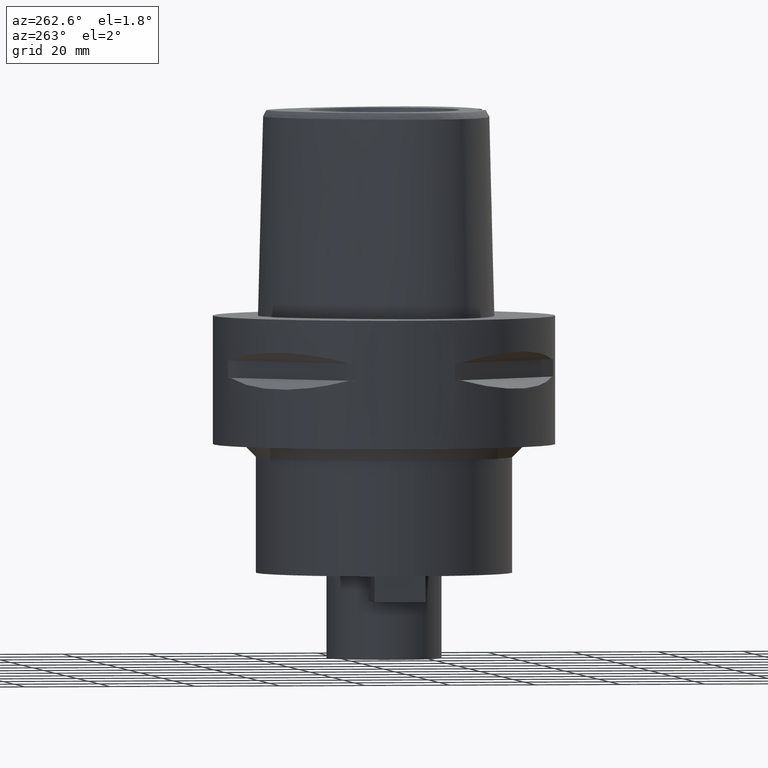
[diagram: clean part render]
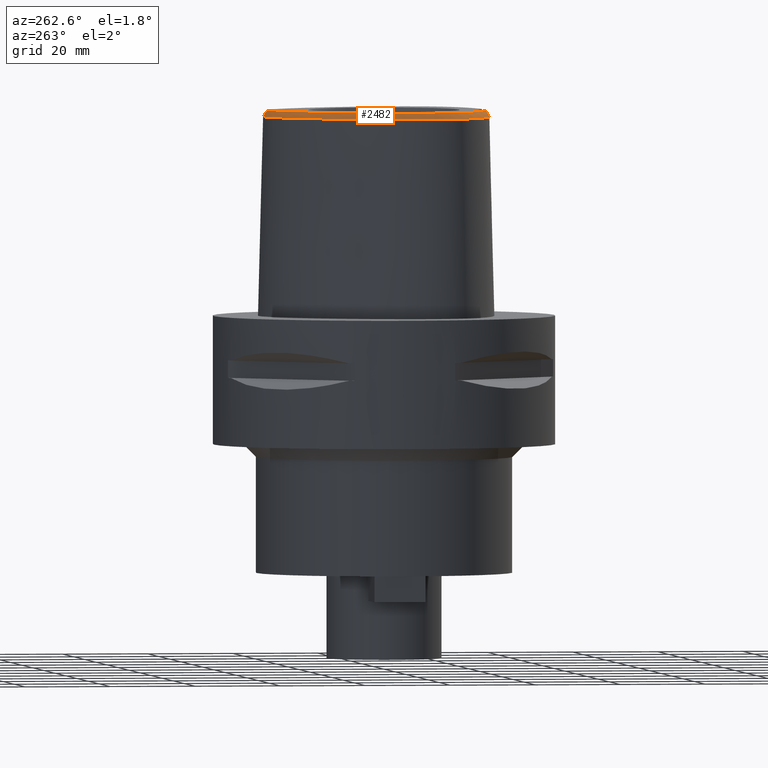
[diagram: same view with one face highlighted and labeled with its STEP entity id]
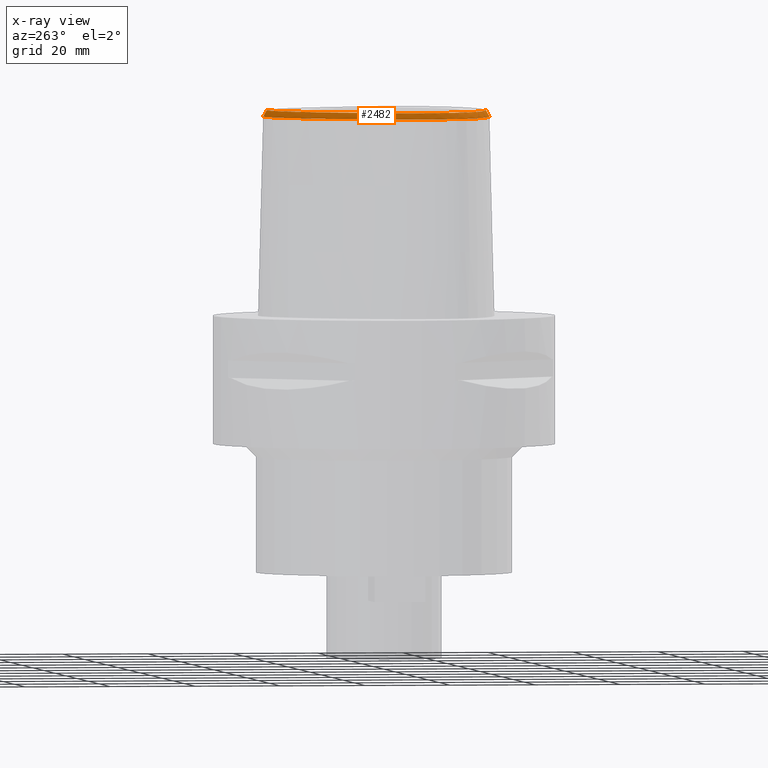
[diagram: x-ray of the same camera — body ghosted, the highlighted face saturated]
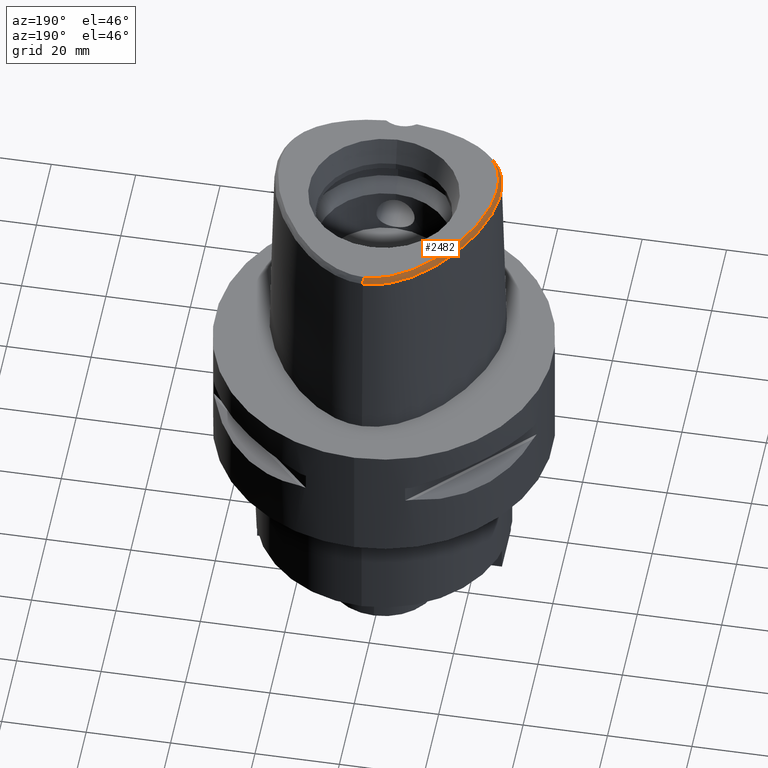
[diagram: same view with one face highlighted and labeled with its STEP entity id]
A machine part, auxiliary view. The second image highlights one B-rep face of the part: STEP entity #2482.
The next image is the same camera in x-ray: the body ghosted, the highlighted face saturated — about 0% of this face is hidden behind the body in this view.
A second angle (auxiliary view) of the same face is appended — the face is thin or edge-on in the first view.
In plain terms, the highlighted face is a freeform B-spline surface patch.
Its self-contained STEP definition (entity closure, byte-faithful):
#26=CARTESIAN_POINT('',(-3.652529789307E0,-2.343985019792E1,4.8E1));
#27=CARTESIAN_POINT('',(-4.682506310251E0,-2.335839077683E1,4.8E1));
#28=CARTESIAN_POINT('',(-6.613979818860E0,-2.313460925064E1,4.8E1));
#29=CARTESIAN_POINT('',(-9.098649977089E0,-2.268460291761E1,4.8E1));
#30=CARTESIAN_POINT('',(-1.127172968099E1,-2.215412045860E1,4.8E1));
#31=CARTESIAN_POINT('',(-1.320908530935E1,-2.155659201484E1,4.8E1));
#32=CARTESIAN_POINT('',(-1.496944205719E1,-2.089388126813E1,4.8E1));
#33=CARTESIAN_POINT('',(-1.658657667306E1,-2.016345981040E1,4.8E1));
#34=CARTESIAN_POINT('',(-1.807297238436E1,-1.936532391597E1,4.8E1));
#35=CARTESIAN_POINT('',(-1.945748736633E1,-1.848331739980E1,4.8E1));
#36=CARTESIAN_POINT('',(-2.074155331957E1,-1.750362714291E1,4.8E1));
#37=CARTESIAN_POINT('',(-2.185182615137E1,-1.647859773456E1,4.8E1));
#38=CARTESIAN_POINT('',(-2.276920347760E1,-1.545131149634E1,4.8E1));
#39=CARTESIAN_POINT('',(-2.352529383792E1,-1.441841763204E1,4.8E1));
#40=CARTESIAN_POINT('',(-2.415214314638E1,-1.335465532835E1,4.8E1));
#41=CARTESIAN_POINT('',(-2.468551687505E1,-1.219714934946E1,4.8E1));
#42=CARTESIAN_POINT('',(-2.513040154312E1,-1.091634099556E1,4.8E1));
#43=CARTESIAN_POINT('',(-2.548097283439E1,-9.472960805102E0,4.8E1));
#44=CARTESIAN_POINT('',(-2.571037113585E1,-7.884873650878E0,4.8E1));
#45=CARTESIAN_POINT('',(-2.580404631293E1,-6.256692086675E0,4.8E1));
#46=CARTESIAN_POINT('',(-2.577267564197E1,-4.569205638491E0,4.8E1));
#47=CARTESIAN_POINT('',(-2.561806689403E1,-2.822790877253E0,4.8E1));
#48=CARTESIAN_POINT('',(-2.533469524151E1,-9.828961935292E-1,4.8E1));
#49=CARTESIAN_POINT('',(-2.490936842220E1,9.707203610340E-1,4.8E1));
#50=CARTESIAN_POINT('',(-2.431744961949E1,3.077167059625E0,4.8E1));
#51=CARTESIAN_POINT('',(-2.350902367181E1,5.407804135988E0,4.8E1));
#52=CARTESIAN_POINT('',(-2.241293427926E1,8.024647750033E0,4.8E1));
#53=CARTESIAN_POINT('',(-2.095602422414E1,1.093087960995E1,4.8E1));
#54=CARTESIAN_POINT('',(-1.919273895913E1,1.387761058776E1,4.8E1));
#55=CARTESIAN_POINT('',(-1.741760577854E1,1.640531101106E1,4.8E1));
#56=CARTESIAN_POINT('',(-1.574552640836E1,1.848413259865E1,4.8E1));
#57=CARTESIAN_POINT('',(-1.415519222907E1,2.022881174342E1,4.8E1));
#58=CARTESIAN_POINT('',(-1.265414855667E1,2.168922134704E1,4.8E1));
#59=CARTESIAN_POINT('',(-1.119834568323E1,2.294610371828E1,4.8E1));
#60=CARTESIAN_POINT('',(-9.752757055716E0,2.404424420693E1,4.8E1));
#61=CARTESIAN_POINT('',(-8.307129368291E0,2.499693428276E1,4.8E1));
#62=CARTESIAN_POINT('',(-6.858336564847E0,2.580759326769E1,4.8E1));
#63=CARTESIAN_POINT('',(-5.395838489006E0,2.647902279660E1,4.8E1));
#64=CARTESIAN_POINT('',(-3.942089810783E0,2.699585107464E1,4.8E1));
#65=CARTESIAN_POINT('',(-2.552926346090E0,2.734495012612E1,4.8E1));
#66=CARTESIAN_POINT('',(-1.253786683061E0,2.754076020330E1,4.8E1));
#67=CARTESIAN_POINT('',(-4.119058837651E-1,2.758331912251E1,4.8E1));
#68=CARTESIAN_POINT('',(-2.553072305E-11,2.758331912251E1,4.8E1));
#192=CARTESIAN_POINT('',(-3.652529789307E0,-2.343985019792E1,4.8E1));
#193=CARTESIAN_POINT('',(-3.751204616441E0,-2.351556477846E1,4.785138543927E1));
#194=CARTESIAN_POINT('',(-3.943512933109E0,-2.367289511864E1,4.754334532480E1));
#195=CARTESIAN_POINT('',(-4.215867144832E0,-2.392533371846E1,4.705187245735E1));
#196=CARTESIAN_POINT('',(-4.388480110983E0,-2.410646604204E1,4.670130956970E1));
#197=CARTESIAN_POINT('',(-4.472216406693E0,-2.420008985674E1,4.652070903171E1));
#202=CARTESIAN_POINT('',(-4.472216406693E0,-2.420008985674E1,4.652070903171E1));
#203=CARTESIAN_POINT('',(-5.503190001927E0,-2.410139905198E1,4.652067891887E1));
#204=CARTESIAN_POINT('',(-7.445357668335E0,-2.384395021709E1,4.652073782991E1));
#205=CARTESIAN_POINT('',(-9.935417258426E0,-2.334901294205E1,4.652070745415E1));
#206=CARTESIAN_POINT('',(-1.212548420313E1,-2.277323581484E1,4.652071768091E1));
#207=CARTESIAN_POINT('',(-1.409692574710E1,-2.212346221456E1,4.652071885692E1));
#208=CARTESIAN_POINT('',(-1.590051589537E1,-2.139933429848E1,4.652071967532E1));
#209=CARTESIAN_POINT('',(-1.756144115567E1,-2.059882784733E1,4.652071621770E1));
#210=CARTESIAN_POINT('',(-1.910048836921E1,-1.971448798703E1,4.652072030783E1));
#211=CARTESIAN_POINT('',(-2.054196795164E1,-1.872363562392E1,4.652072035330E1));
#212=CARTESIAN_POINT('',(-2.183072202682E1,-1.765270089701E1,4.652071533024E1));
#213=CARTESIAN_POINT('',(-2.291063551985E1,-1.656414933520E1,4.652071975412E1));
#214=CARTESIAN_POINT('',(-2.380538493028E1,-1.546780207676E1,4.652071204281E1));
#215=CARTESIAN_POINT('',(-2.454699289689E1,-1.435075519920E1,4.652073046057E1));
#216=CARTESIAN_POINT('',(-2.516715833582E1,-1.317314986992E1,4.652069805662E1));
#217=CARTESIAN_POINT('',(-2.569231299510E1,-1.187855111428E1,4.652072218442E1));
#218=CARTESIAN_POINT('',(-2.611811315357E1,-1.044263406064E1,4.652071653700E1));
#219=CARTESIAN_POINT('',(-2.643184331775E1,-8.829632405051E0,4.652072244915E1));
#220=CARTESIAN_POINT('',(-2.660377111760E1,-7.106546678198E0,4.652071411699E1));
#221=CARTESIAN_POINT('',(-2.663296322915E1,-5.340127903710E0,4.652071938868E1));
#222=CARTESIAN_POINT('',(-2.652786718403E1,-3.519875759225E0,4.652071342531E1));
#223=CARTESIAN_POINT('',(-2.628729444329E1,-1.620070036829E0,4.652071930425E1));
#224=CARTESIAN_POINT('',(-2.590191233512E1,3.816879042275E-1,4.652071700418E1));
#225=CARTESIAN_POINT('',(-2.535125456853E1,2.523708755760E0,4.652071298329E1));
#226=CARTESIAN_POINT('',(-2.459101607603E1,4.874103185555E0,4.652072616018E1));
#227=CARTESIAN_POINT('',(-2.355841855806E1,7.493623084531E0,4.652068738113E1));
#228=CARTESIAN_POINT('',(-2.214987859753E1,1.045878478632E1,4.652072475331E1));
#229=CARTESIAN_POINT('',(-2.039418248091E1,1.353815268076E1,4.652071609153E1));
#230=CARTESIAN_POINT('',(-1.851707060679E1,1.631983306529E1,4.652070426193E1));
#231=CARTESIAN_POINT('',(-1.673076984686E1,1.860624566483E1,4.652070997599E1));
#232=CARTESIAN_POINT('',(-1.505069735311E1,2.049452299207E1,4.652072279845E1));
#233=CARTESIAN_POINT('',(-1.346382916793E1,2.207104710709E1,4.652071156352E1));
#234=CARTESIAN_POINT('',(-1.193469667313E1,2.341630720292E1,4.652072768223E1));
#235=CARTESIAN_POINT('',(-1.040675075343E1,2.459752838155E1,4.652071053823E1));
#236=CARTESIAN_POINT('',(-8.874095577770E0,2.562375006414E1,4.652072407927E1));
#237=CARTESIAN_POINT('',(-7.317301969183E0,2.650644566714E1,4.652071476902E1));
#238=CARTESIAN_POINT('',(-5.742362672839E0,2.723547265641E1,4.652071829602E1));
#239=CARTESIAN_POINT('',(-4.181458250665E0,2.779099149271E1,4.652071723104E1));
#240=CARTESIAN_POINT('',(-2.715705614718E0,2.815916045426E1,4.652072144517E1));
#241=CARTESIAN_POINT('',(-1.321645859074E0,2.836809704241E1,4.652066830028E1));
#242=CARTESIAN_POINT('',(-4.410759299422E-1,2.841206021535E1,4.652071719450E1));
#243=CARTESIAN_POINT('',(-1.216260473557E-11,2.841206021535E1,
4.652071719451E1));
#248=DIRECTION('',(-7.883963455920E-12,-4.887572309465E-1,8.724198353989E-1));
#249=VECTOR('',#248,1.695608863382E0);
#250=CARTESIAN_POINT('',(-1.216260473557E-11,2.841206021535E1,
4.652071719451E1));
#251=LINE('',#250,#249);
#255=CARTESIAN_POINT('',(-4.472216406693E0,-2.420008985674E1,4.652070903171E1));
#1675=CARTESIAN_POINT('',(-3.652529789305E0,-2.343985019792E1,4.8E1));
#1677=VERTEX_POINT('',#1675);
#1678=VERTEX_POINT('',#68);
#1687=VERTEX_POINT('',#255);
#1688=CARTESIAN_POINT('',(-1.216260473557E-11,2.841206021535E1,
4.652071719451E1));
#1689=VERTEX_POINT('',#1688);
#2198=CARTESIAN_POINT('',(7.470627711222E-1,2.746096849947E1,4.818007437424E1));
#2199=CARTESIAN_POINT('',(7.675595756998E-1,2.780384503658E1,4.756692118704E1));
#2200=CARTESIAN_POINT('',(7.880563802773E-1,2.814672157369E1,4.695376799984E1));
#2201=CARTESIAN_POINT('',(8.085531848548E-1,2.848959811080E1,4.634061481263E1));
#2202=CARTESIAN_POINT('',(4.906333337115E-1,2.747516741218E1,4.818007430156E1));
#2203=CARTESIAN_POINT('',(5.043756355415E-1,2.781846649743E1,4.756692136183E1));
#2204=CARTESIAN_POINT('',(5.181179373716E-1,2.816176558269E1,4.695376842210E1));
#2205=CARTESIAN_POINT('',(5.318602392016E-1,2.850506466795E1,4.634061548236E1));
#2206=CARTESIAN_POINT('',(1.152374421248E-2,2.748929236255E1,4.818007425644E1));
#2207=CARTESIAN_POINT('',(1.193536322460E-2,2.783299674865E1,4.756692147035E1));
#2208=CARTESIAN_POINT('',(1.234698223672E-2,2.817670113475E1,4.695376868426E1));
#2209=CARTESIAN_POINT('',(1.275860124883E-2,2.852040552085E1,4.634061589816E1));
#2210=CARTESIAN_POINT('',(-6.864351783970E-1,2.746949972827E1,
4.818007431968E1));
#2211=CARTESIAN_POINT('',(-7.059538771896E-1,2.781263618520E1,
4.756692131829E1));
#2212=CARTESIAN_POINT('',(-7.254725759822E-1,2.815577264213E1,
4.695376831690E1));
#2213=CARTESIAN_POINT('',(-7.449912747749E-1,2.849890909906E1,
4.634061531552E1));
#2214=CARTESIAN_POINT('',(-1.395128435649E0,2.740958550953E1,4.818007437347E1));
#2215=CARTESIAN_POINT('',(-1.433894391264E0,2.775107897130E1,4.756692118891E1));
#2216=CARTESIAN_POINT('',(-1.472660346879E0,2.809257243307E1,4.695376800435E1));
#2217=CARTESIAN_POINT('',(-1.511426302494E0,2.843406589484E1,4.634061481979E1));
#2218=CARTESIAN_POINT('',(-2.122206818485E0,2.730677519537E1,4.818007434554E1));
#2219=CARTESIAN_POINT('',(-2.179912201855E0,2.764557909007E1,4.756692125610E1));
#2220=CARTESIAN_POINT('',(-2.237617585226E0,2.798438298476E1,4.695376816665E1));
#2221=CARTESIAN_POINT('',(-2.295322968597E0,2.832318687946E1,4.634061507721E1));
#2222=CARTESIAN_POINT('',(-2.873611276216E0,2.715790079199E1,4.818007425334E1));
#2223=CARTESIAN_POINT('',(-2.949830175935E0,2.749302051506E1,4.756692147784E1));
#2224=CARTESIAN_POINT('',(-3.026049075654E0,2.782814023813E1,4.695376870234E1));
#2225=CARTESIAN_POINT('',(-3.102267975372E0,2.816325996121E1,4.634061592684E1));
#2226=CARTESIAN_POINT('',(-3.651246488478E0,2.695924249807E1,4.818007421727E1));
#2227=CARTESIAN_POINT('',(-3.745487212938E0,2.728974177878E1,4.756692156455E1));
#2228=CARTESIAN_POINT('',(-3.839727937398E0,2.762024105949E1,4.695376891184E1));
#2229=CARTESIAN_POINT('',(-3.933968661857E0,2.795074034020E1,4.634061625912E1));
#2230=CARTESIAN_POINT('',(-4.457146651449E0,2.670659696162E1,4.818007424536E1));
#2231=CARTESIAN_POINT('',(-4.568855841602E0,2.703160224369E1,4.756692149702E1));
#2232=CARTESIAN_POINT('',(-4.680565031755E0,2.735660752576E1,4.695376874868E1));
#2233=CARTESIAN_POINT('',(-4.792274221907E0,2.768161280784E1,4.634061600034E1));
#2234=CARTESIAN_POINT('',(-5.292907864902E0,2.639526402161E1,4.818007429656E1));
#2235=CARTESIAN_POINT('',(-5.421479421454E0,2.671396914189E1,4.756692137387E1));
#2236=CARTESIAN_POINT('',(-5.550050978006E0,2.703267426217E1,4.695376845117E1));
#2237=CARTESIAN_POINT('',(-5.678622534558E0,2.735137938246E1,4.634061552847E1));
#2238=CARTESIAN_POINT('',(-6.160998729714E0,2.601954083131E1,4.818007424294E1));
#2239=CARTESIAN_POINT('',(-6.305785273340E0,2.633120800192E1,4.756692150284E1));
#2240=CARTESIAN_POINT('',(-6.450571816965E0,2.664287517253E1,4.695376876275E1));
#2241=CARTESIAN_POINT('',(-6.595358360590E0,2.695454234314E1,4.634061602265E1));
#2242=CARTESIAN_POINT('',(-7.063786827982E0,2.557295140233E1,4.818007421389E1));
#2243=CARTESIAN_POINT('',(-7.224090723039E0,2.587692199137E1,4.756692157271E1));
#2244=CARTESIAN_POINT('',(-7.384394618095E0,2.618089258040E1,4.695376893153E1));
#2245=CARTESIAN_POINT('',(-7.544698513152E0,2.648486316943E1,4.634061629035E1));
#2246=CARTESIAN_POINT('',(-8.000835887306E0,2.504967586340E1,4.818007428044E1));
#2247=CARTESIAN_POINT('',(-8.175953166202E0,2.534535409419E1,4.756692141263E1));
#2248=CARTESIAN_POINT('',(-8.351070445097E0,2.564103232498E1,4.695376854483E1));
#2249=CARTESIAN_POINT('',(-8.526187723992E0,2.593671055577E1,4.634061567702E1));
#2250=CARTESIAN_POINT('',(-8.972342322753E0,2.444301718419E1,4.818007428623E1));
#2251=CARTESIAN_POINT('',(-9.161562658323E0,2.472986800220E1,4.756692139871E1));
#2252=CARTESIAN_POINT('',(-9.350782993894E0,2.501671882021E1,4.695376851120E1));
#2253=CARTESIAN_POINT('',(-9.540003329464E0,2.530356963822E1,4.634061562369E1));
#2254=CARTESIAN_POINT('',(-9.978307691774E0,2.374572063848E1,4.818007431102E1));
#2255=CARTESIAN_POINT('',(-1.018089529795E1,2.402328557824E1,4.756692133910E1));
#2256=CARTESIAN_POINT('',(-1.038348290413E1,2.430085051799E1,4.695376836718E1));
#2257=CARTESIAN_POINT('',(-1.058607051031E1,2.457841545775E1,4.634061539526E1));
#2258=CARTESIAN_POINT('',(-1.101495079326E1,2.295267068499E1,4.818007431111E1));
#2259=CARTESIAN_POINT('',(-1.123020284051E1,2.322052727604E1,4.756692133888E1));
#2260=CARTESIAN_POINT('',(-1.144545488777E1,2.348838386710E1,4.695376836665E1));
#2261=CARTESIAN_POINT('',(-1.166070693503E1,2.375624045815E1,4.634061539442E1));
#2262=CARTESIAN_POINT('',(-1.208045106783E1,2.205699325411E1,4.818007403331E1));
#2263=CARTESIAN_POINT('',(-1.230765026913E1,2.231478703621E1,4.756692200700E1));
#2264=CARTESIAN_POINT('',(-1.253484947043E1,2.257258081830E1,4.695376998069E1));
#2265=CARTESIAN_POINT('',(-1.276204867173E1,2.283037460040E1,4.634061795438E1));
#2266=CARTESIAN_POINT('',(-1.317179066426E1,2.105234887659E1,4.818007384380E1));
#2267=CARTESIAN_POINT('',(-1.341024216944E1,2.129976546049E1,4.756692246274E1));
#2268=CARTESIAN_POINT('',(-1.364869367461E1,2.154718204440E1,4.695377108167E1));
#2269=CARTESIAN_POINT('',(-1.388714517979E1,2.179459862830E1,4.634061970060E1));
#2270=CARTESIAN_POINT('',(-1.428043398058E1,1.993731380552E1,4.818007389992E1));
#2271=CARTESIAN_POINT('',(-1.452946932630E1,2.017406836580E1,4.756692232777E1));
#2272=CARTESIAN_POINT('',(-1.477850467202E1,2.041082292607E1,4.695377075563E1));
#2273=CARTESIAN_POINT('',(-1.502754001775E1,2.064757748634E1,4.634061918348E1));
#2274=CARTESIAN_POINT('',(-1.539640292637E1,1.871291615859E1,4.818007419418E1));
#2275=CARTESIAN_POINT('',(-1.565537841070E1,1.893874992375E1,4.756692162011E1));
#2276=CARTESIAN_POINT('',(-1.591435389503E1,1.916458368892E1,4.695376904604E1));
#2277=CARTESIAN_POINT('',(-1.617332937936E1,1.939041745409E1,4.634061647197E1));
#2278=CARTESIAN_POINT('',(-1.650840338142E1,1.738286762779E1,4.818007434783E1));
#2279=CARTESIAN_POINT('',(-1.677671995443E1,1.759751499109E1,4.756692125055E1));
#2280=CARTESIAN_POINT('',(-1.704503652744E1,1.781216235438E1,4.695376815328E1));
#2281=CARTESIAN_POINT('',(-1.731335310045E1,1.802680971768E1,4.634061505600E1));
#2282=CARTESIAN_POINT('',(-1.760673592406E1,1.595047923292E1,4.818007423745E1));
#2283=CARTESIAN_POINT('',(-1.788378940695E1,1.615372013480E1,4.756692151605E1));
#2284=CARTESIAN_POINT('',(-1.816084288984E1,1.635696103667E1,4.695376879466E1));
#2285=CARTESIAN_POINT('',(-1.843789637274E1,1.656020193855E1,4.634061607326E1));
#2286=CARTESIAN_POINT('',(-1.867644162052E1,1.442785707898E1,4.818007420250E1));
#2287=CARTESIAN_POINT('',(-1.896165900979E1,1.461946878758E1,4.756692160010E1));
#2288=CARTESIAN_POINT('',(-1.924687639906E1,1.481108049619E1,4.695376899770E1));
#2289=CARTESIAN_POINT('',(-1.953209378833E1,1.500269220479E1,4.634061639530E1));
#2290=CARTESIAN_POINT('',(-1.969846849384E1,1.283749541518E1,4.818007428670E1));
#2291=CARTESIAN_POINT('',(-1.999127696234E1,1.301728914998E1,4.756692139758E1));
#2292=CARTESIAN_POINT('',(-2.028408543085E1,1.319708288477E1,4.695376850845E1));
#2293=CARTESIAN_POINT('',(-2.057689389935E1,1.337687661956E1,4.634061561933E1));
#2294=CARTESIAN_POINT('',(-2.066025424248E1,1.119743171529E1,4.818007427983E1));
#2295=CARTESIAN_POINT('',(-2.096011602770E1,1.136519711802E1,4.756692141409E1));
#2296=CARTESIAN_POINT('',(-2.125997781293E1,1.153296252074E1,4.695376854834E1));
#2297=CARTESIAN_POINT('',(-2.155983959815E1,1.170072792347E1,4.634061568260E1));
#2298=CARTESIAN_POINT('',(-2.155189995234E1,9.524484026108E0,4.818007407355E1));
#2299=CARTESIAN_POINT('',(-2.185834744100E1,9.679897611948E0,4.756692191020E1));
#2300=CARTESIAN_POINT('',(-2.216479492966E1,9.835311197787E0,4.695376974686E1));
#2301=CARTESIAN_POINT('',(-2.247124241832E1,9.990724783627E0,4.634061758351E1));
#2302=CARTESIAN_POINT('',(-2.236485315043E1,7.835573170394E0,4.818007402225E1));
#2303=CARTESIAN_POINT('',(-2.267744278513E1,7.978236219121E0,4.756692203359E1));
#2304=CARTESIAN_POINT('',(-2.299003241984E1,8.120899267848E0,4.695377004493E1));
#2305=CARTESIAN_POINT('',(-2.330262205455E1,8.263562316575E0,4.634061805626E1));
#2306=CARTESIAN_POINT('',(-2.308852779564E1,6.156850820976E0,4.818007416632E1));
#2307=CARTESIAN_POINT('',(-2.340679172891E1,6.286368020455E0,4.756692168709E1));
#2308=CARTESIAN_POINT('',(-2.372505566218E1,6.415885219933E0,4.695376920786E1));
#2309=CARTESIAN_POINT('',(-2.404331959545E1,6.545402419412E0,4.634061672863E1));
#2310=CARTESIAN_POINT('',(-2.371632719488E1,4.513910470943E0,4.818007432413E1));
#2311=CARTESIAN_POINT('',(-2.403977263585E1,4.629891001785E0,4.756692130756E1));
#2312=CARTESIAN_POINT('',(-2.436321807681E1,4.745871532627E0,4.695376829098E1));
#2313=CARTESIAN_POINT('',(-2.468666351778E1,4.861852063469E0,4.634061527441E1));
#2314=CARTESIAN_POINT('',(-2.424961195378E1,2.917797012375E0,4.818007429191E1));
#2315=CARTESIAN_POINT('',(-2.457772371981E1,3.019842493268E0,4.756692138506E1));
#2316=CARTESIAN_POINT('',(-2.490583548583E1,3.121887974160E0,4.695376847821E1));
#2317=CARTESIAN_POINT('',(-2.523394725186E1,3.223933455053E0,4.634061557136E1));
#2318=CARTESIAN_POINT('',(-2.469041246685E1,1.380615373840E0,4.818007428751E1));
#2319=CARTESIAN_POINT('',(-2.502265378619E1,1.468302044506E0,4.756692139563E1));
#2320=CARTESIAN_POINT('',(-2.535489510553E1,1.555988715173E0,4.695376850375E1));
#2321=CARTESIAN_POINT('',(-2.568713642487E1,1.643675385839E0,4.634061561187E1));
#2322=CARTESIAN_POINT('',(-2.504284650643E1,-8.934817200532E-2,
4.818007423053E1));
#2323=CARTESIAN_POINT('',(-2.537864796921E1,-1.645475954603E-2,
4.756692153266E1));
#2324=CARTESIAN_POINT('',(-2.571444943199E1,5.643865291326E-2,
4.695376883479E1));
#2325=CARTESIAN_POINT('',(-2.605025089476E1,1.293320653726E-1,
4.634061613693E1));
#2326=CARTESIAN_POINT('',(-2.531237631842E1,-1.486576178291E0,
4.818007427683E1));
#2327=CARTESIAN_POINT('',(-2.565112960540E1,-1.428907995297E0,
4.756692142135E1));
#2328=CARTESIAN_POINT('',(-2.598988289239E1,-1.371239812302E0,
4.695376856587E1));
#2329=CARTESIAN_POINT('',(-2.632863617937E1,-1.313571629308E0,
4.634061571039E1));
#2330=CARTESIAN_POINT('',(-2.550511553858E1,-2.807466959519E0,
4.818007427257E1));
#2331=CARTESIAN_POINT('',(-2.584617249484E1,-2.765478508058E0,
4.756692143158E1));
#2332=CARTESIAN_POINT('',(-2.618722945110E1,-2.723490056597E0,
4.695376859059E1));
#2333=CARTESIAN_POINT('',(-2.652828640735E1,-2.681501605136E0,
4.634061574960E1));
#2334=CARTESIAN_POINT('',(-2.562790229782E1,-4.052758051487E0,
4.818007424947E1));
#2335=CARTESIAN_POINT('',(-2.597056145455E1,-4.026852832091E0,
4.756692148713E1));
#2336=CARTESIAN_POINT('',(-2.631322061128E1,-4.000947612695E0,
4.695376872479E1));
#2337=CARTESIAN_POINT('',(-2.665587976802E1,-3.975042393299E0,
4.634061596245E1));
#2338=CARTESIAN_POINT('',(-2.568725487846E1,-5.221948240251E0,
4.818007430130E1));
#2339=CARTESIAN_POINT('',(-2.603076868813E1,-5.212533048089E0,
4.756692136247E1));
#2340=CARTESIAN_POINT('',(-2.637428249781E1,-5.203117855927E0,
4.695376842364E1));
#2341=CARTESIAN_POINT('',(-2.671779630749E1,-5.193702663764E0,
4.634061548481E1));
#2342=CARTESIAN_POINT('',(-2.568959798851E1,-6.318246361195E0,
4.818007422560E1));
#2343=CARTESIAN_POINT('',(-2.603316554222E1,-6.325702119210E0,
4.756692154453E1));
#2344=CARTESIAN_POINT('',(-2.637673309593E1,-6.333157877225E0,
4.695376886345E1));
#2345=CARTESIAN_POINT('',(-2.672030064964E1,-6.340613635239E0,
4.634061618238E1));
#2346=CARTESIAN_POINT('',(-2.564080455459E1,-7.346003424791E0,
4.818007419850E1));
#2347=CARTESIAN_POINT('',(-2.598357396947E1,-7.370645488191E0,
4.756692160971E1));
#2348=CARTESIAN_POINT('',(-2.632634338434E1,-7.395287551592E0,
4.695376902092E1));
#2349=CARTESIAN_POINT('',(-2.666911279922E1,-7.419929614992E0,
4.634061643213E1));
#2350=CARTESIAN_POINT('',(-2.554628063621E1,-8.307275268431E0,
4.818007427645E1));
#2351=CARTESIAN_POINT('',(-2.588735083906E1,-8.349386537060E0,
4.756692142225E1));
#2352=CARTESIAN_POINT('',(-2.622842104191E1,-8.391497805689E0,
4.695376856805E1));
#2353=CARTESIAN_POINT('',(-2.656949124477E1,-8.433609074318E0,
4.634061571385E1));
#2354=CARTESIAN_POINT('',(-2.541078902936E1,-9.206357880508E0,
4.818007431129E1));
#2355=CARTESIAN_POINT('',(-2.574920984650E1,-9.266170437578E0,
4.756692133846E1));
#2356=CARTESIAN_POINT('',(-2.608763066365E1,-9.325982994649E0,
4.695376836563E1));
#2357=CARTESIAN_POINT('',(-2.642605148079E1,-9.385795551720E0,
4.634061539281E1));
#2358=CARTESIAN_POINT('',(-2.523829066161E1,-1.004833037103E1,
4.818007430506E1));
#2359=CARTESIAN_POINT('',(-2.557307308327E1,-1.012598722730E1,
4.756692135344E1));
#2360=CARTESIAN_POINT('',(-2.590785550493E1,-1.020364408356E1,
4.695376840181E1));
#2361=CARTESIAN_POINT('',(-2.624263792659E1,-1.028130093983E1,
4.634061545019E1));
#2362=CARTESIAN_POINT('',(-2.503221289674E1,-1.083734843161E1,
4.818007429493E1));
#2363=CARTESIAN_POINT('',(-2.536233346706E1,-1.093292022761E1,
4.756692137778E1));
#2364=CARTESIAN_POINT('',(-2.569245403739E1,-1.102849202360E1,
4.695376846064E1));
#2365=CARTESIAN_POINT('',(-2.602257460771E1,-1.112406381960E1,
4.634061554349E1));
#2366=CARTESIAN_POINT('',(-2.479528962226E1,-1.157772702072E1,
4.818007426345E1));
#2367=CARTESIAN_POINT('',(-2.511969508291E1,-1.169120789717E1,
4.756692145349E1));
#2368=CARTESIAN_POINT('',(-2.544410054356E1,-1.180468877361E1,
4.695376864353E1));
#2369=CARTESIAN_POINT('',(-2.576850600422E1,-1.191816965006E1,
4.634061583357E1));
#2370=CARTESIAN_POINT('',(-2.452944619965E1,-1.227407240452E1,
4.818007423650E1));
#2371=CARTESIAN_POINT('',(-2.484707511320E1,-1.240534169987E1,
4.756692151831E1));
#2372=CARTESIAN_POINT('',(-2.516470402675E1,-1.253661099522E1,
4.695376880013E1));
#2373=CARTESIAN_POINT('',(-2.548233294029E1,-1.266788029057E1,
4.634061608194E1));
#2374=CARTESIAN_POINT('',(-2.423643105343E1,-1.292953278328E1,
4.818007434532E1));
#2375=CARTESIAN_POINT('',(-2.454621351632E1,-1.307838459640E1,
4.756692125659E1));
#2376=CARTESIAN_POINT('',(-2.485599597921E1,-1.322723640952E1,
4.695376816787E1));
#2377=CARTESIAN_POINT('',(-2.516577844210E1,-1.337608822264E1,
4.634061507914E1));
#2378=CARTESIAN_POINT('',(-2.391809738777E1,-1.354623254218E1,
4.818007426787E1));
#2379=CARTESIAN_POINT('',(-2.421897013537E1,-1.371236913437E1,
4.756692144288E1));
#2380=CARTESIAN_POINT('',(-2.451984288298E1,-1.387850572656E1,
4.695376861789E1));
#2381=CARTESIAN_POINT('',(-2.482071563058E1,-1.404464231876E1,
4.634061579289E1));
#2382=CARTESIAN_POINT('',(-2.356927256655E1,-1.413734675044E1,
4.818007431801E1));
#2383=CARTESIAN_POINT('',(-2.386014013413E1,-1.432043502796E1,
4.756692132228E1));
#2384=CARTESIAN_POINT('',(-2.415100770170E1,-1.450352330549E1,
4.695376832654E1));
#2385=CARTESIAN_POINT('',(-2.444187526928E1,-1.468661158302E1,
4.634061533081E1));
#2386=CARTESIAN_POINT('',(-2.317914851122E1,-1.472052436976E1,
4.818007430613E1));
#2387=CARTESIAN_POINT('',(-2.345922898728E1,-1.491971258004E1,
4.756692135086E1));
#2388=CARTESIAN_POINT('',(-2.373930946335E1,-1.511890079031E1,
4.695376839559E1));
#2389=CARTESIAN_POINT('',(-2.401938993941E1,-1.531808900058E1,
4.634061544033E1));
#2390=CARTESIAN_POINT('',(-2.274186491372E1,-1.530099412748E1,
4.818007423373E1));
#2391=CARTESIAN_POINT('',(-2.301039685940E1,-1.551549218229E1,
4.756692152500E1));
#2392=CARTESIAN_POINT('',(-2.327892880507E1,-1.572999023710E1,
4.695376881626E1));
#2393=CARTESIAN_POINT('',(-2.354746075075E1,-1.594448829191E1,
4.634061610753E1));
#2394=CARTESIAN_POINT('',(-2.225458374537E1,-1.587825699053E1,
4.818007427981E1));
#2395=CARTESIAN_POINT('',(-2.251087503938E1,-1.610723409509E1,
4.756692141418E1));
#2396=CARTESIAN_POINT('',(-2.276716633340E1,-1.633621119965E1,
4.695376854855E1));
#2397=CARTESIAN_POINT('',(-2.302345762741E1,-1.656518830421E1,
4.634061568292E1));
#2398=CARTESIAN_POINT('',(-2.171313292701E1,-1.645273038157E1,
4.818007429814E1));
#2399=CARTESIAN_POINT('',(-2.195658424076E1,-1.669530779227E1,
4.756692137008E1));
#2400=CARTESIAN_POINT('',(-2.220003555450E1,-1.693788520296E1,
4.695376844202E1));
#2401=CARTESIAN_POINT('',(-2.244348686825E1,-1.718046261366E1,
4.634061551395E1));
#2402=CARTESIAN_POINT('',(-2.111233959188E1,-1.702493125852E1,
4.818007430800E1));
#2403=CARTESIAN_POINT('',(-2.134244535428E1,-1.728019575223E1,
4.756692134636E1));
#2404=CARTESIAN_POINT('',(-2.157255111668E1,-1.753546024595E1,
4.695376838473E1));
#2405=CARTESIAN_POINT('',(-2.180265687907E1,-1.779072473966E1,
4.634061542309E1));
#2406=CARTESIAN_POINT('',(-2.044723644860E1,-1.759420966883E1,
4.818007430855E1));
#2407=CARTESIAN_POINT('',(-2.066357579577E1,-1.786123434904E1,
4.756692134504E1));
#2408=CARTESIAN_POINT('',(-2.087991514294E1,-1.812825902924E1,
4.695376838154E1));
#2409=CARTESIAN_POINT('',(-2.109625449011E1,-1.839528370945E1,
4.634061541803E1));
#2410=CARTESIAN_POINT('',(-1.971204044804E1,-1.815978642475E1,
4.818007424633E1));
#2411=CARTESIAN_POINT('',(-1.991426952040E1,-1.843764305743E1,
4.756692149469E1));
#2412=CARTESIAN_POINT('',(-2.011649859277E1,-1.871549969010E1,
4.695376874304E1));
#2413=CARTESIAN_POINT('',(-2.031872766513E1,-1.899335632278E1,
4.634061599140E1));
#2414=CARTESIAN_POINT('',(-1.890030367108E1,-1.872049868982E1,
4.818007419283E1));
#2415=CARTESIAN_POINT('',(-1.908817720278E1,-1.900824903361E1,
4.756692162336E1));
#2416=CARTESIAN_POINT('',(-1.927605073449E1,-1.929599937740E1,
4.695376905390E1));
#2417=CARTESIAN_POINT('',(-1.946392426620E1,-1.958374972120E1,
4.634061648443E1));
#2418=CARTESIAN_POINT('',(-1.800668178033E1,-1.927363207525E1,
4.818007425988E1));
#2419=CARTESIAN_POINT('',(-1.818001651805E1,-1.957036102071E1,
4.756692146208E1));
#2420=CARTESIAN_POINT('',(-1.835335125578E1,-1.986708996618E1,
4.695376866427E1));
#2421=CARTESIAN_POINT('',(-1.852668599351E1,-2.016381891164E1,
4.634061586647E1));
#2422=CARTESIAN_POINT('',(-1.702591818128E1,-1.981582280255E1,
4.818007428921E1));
#2423=CARTESIAN_POINT('',(-1.718457510426E1,-2.012064582593E1,
4.756692139153E1));
#2424=CARTESIAN_POINT('',(-1.734323202723E1,-2.042546884931E1,
4.695376849384E1));
#2425=CARTESIAN_POINT('',(-1.750188895021E1,-2.073029187270E1,
4.634061559616E1));
#2426=CARTESIAN_POINT('',(-1.595114353755E1,-2.034398384790E1,
4.818007424240E1));
#2427=CARTESIAN_POINT('',(-1.609508255873E1,-2.065602016260E1,
4.756692150413E1));
#2428=CARTESIAN_POINT('',(-1.623902157992E1,-2.096805647731E1,
4.695376876585E1));
#2429=CARTESIAN_POINT('',(-1.638296060111E1,-2.128009279201E1,
4.634061602758E1));
#2430=CARTESIAN_POINT('',(-1.477802865829E1,-2.085319753336E1,
4.818007429055E1));
#2431=CARTESIAN_POINT('',(-1.490723625949E1,-2.117161095083E1,
4.756692138832E1));
#2432=CARTESIAN_POINT('',(-1.503644386070E1,-2.149002436830E1,
4.695376848609E1));
#2433=CARTESIAN_POINT('',(-1.516565146190E1,-2.180843778577E1,
4.634061558385E1));
#2434=CARTESIAN_POINT('',(-1.350303708321E1,-2.133782466783E1,
4.818007425349E1));
#2435=CARTESIAN_POINT('',(-1.361753106288E1,-2.166181442393E1,
4.756692147744E1));
#2436=CARTESIAN_POINT('',(-1.373202504256E1,-2.198580418004E1,
4.695376870139E1));
#2437=CARTESIAN_POINT('',(-1.384651902223E1,-2.230979393615E1,
4.634061592534E1));
#2438=CARTESIAN_POINT('',(-1.212281051869E1,-2.179198631570E1,
4.818007424993E1));
#2439=CARTESIAN_POINT('',(-1.222266809769E1,-2.212077741613E1,
4.756692148604E1));
#2440=CARTESIAN_POINT('',(-1.232252567669E1,-2.244956851655E1,
4.695376872215E1));
#2441=CARTESIAN_POINT('',(-1.242238325569E1,-2.277835961698E1,
4.634061595826E1));
#2442=CARTESIAN_POINT('',(-1.063869651539E1,-2.220817446165E1,
4.818007429029E1));
#2443=CARTESIAN_POINT('',(-1.072398382956E1,-2.254103842408E1,
4.756692138895E1));
#2444=CARTESIAN_POINT('',(-1.080927114374E1,-2.287390238652E1,
4.695376848761E1));
#2445=CARTESIAN_POINT('',(-1.089455845791E1,-2.320676634896E1,
4.634061558627E1));
#2446=CARTESIAN_POINT('',(-9.053190847202E0,-2.257893174208E1,4.818007429E1));
#2447=CARTESIAN_POINT('',(-9.124015826902E0,-2.291516626389E1,
4.756692138965E1));
#2448=CARTESIAN_POINT('',(-9.194840806602E0,-2.325140078570E1,
4.695376848931E1));
#2449=CARTESIAN_POINT('',(-9.265665786302E0,-2.358763530750E1,
4.634061558897E1));
#2450=CARTESIAN_POINT('',(-7.373477574130E0,-2.289632428989E1,
4.818007429687E1));
#2451=CARTESIAN_POINT('',(-7.429926338210E0,-2.323526577686E1,
4.756692137312E1));
#2452=CARTESIAN_POINT('',(-7.486375102289E0,-2.357420726383E1,
4.695376844938E1));
#2453=CARTESIAN_POINT('',(-7.542823866369E0,-2.391314875081E1,
4.634061552563E1));
#2454=CARTESIAN_POINT('',(-5.609057941707E0,-2.315290051611E1,
4.818007413617E1));
#2455=CARTESIAN_POINT('',(-5.651232200563E0,-2.349390975380E1,
4.756692175963E1));
#2456=CARTESIAN_POINT('',(-5.693406459419E0,-2.383491899148E1,
4.695376938310E1));
#2457=CARTESIAN_POINT('',(-5.735580718275E0,-2.417592822916E1,
4.634061700657E1));
#2458=CARTESIAN_POINT('',(-4.344925945724E0,-2.328300179397E1,
4.818007409799E1));
#2459=CARTESIAN_POINT('',(-4.377334788733E0,-2.362501221125E1,
4.756692185145E1));
#2460=CARTESIAN_POINT('',(-4.409743631743E0,-2.396702262853E1,
4.695376960491E1));
#2461=CARTESIAN_POINT('',(-4.442152474752E0,-2.430903304582E1,
4.634061735837E1));
#2462=CARTESIAN_POINT('',(-3.428502426916E0,-2.335671502406E1,
4.818007411284E1));
#2463=CARTESIAN_POINT('',(-3.453948569078E0,-2.369928536781E1,
4.756692181573E1));
#2464=CARTESIAN_POINT('',(-3.479394711240E0,-2.404185571155E1,
4.695376951861E1));
#2465=CARTESIAN_POINT('',(-3.504840853401E0,-2.438442605530E1,
4.634061722150E1));
#2466=CARTESIAN_POINT('',(-3.130609433442E0,-2.337772456725E1,
4.818007412344E1));
#2467=CARTESIAN_POINT('',(-3.153808619704E0,-2.372045325850E1,
4.756692179021E1));
#2468=CARTESIAN_POINT('',(-3.177007805965E0,-2.406318194975E1,
4.695376945698E1));
#2469=CARTESIAN_POINT('',(-3.200206992226E0,-2.440591064100E1,
4.634061712375E1));
#2470=CARTESIAN_POINT('',(-2.872224260130E0,-2.339374739393E1,
4.818007413545E1));
#2471=CARTESIAN_POINT('',(-2.893484894934E0,-2.373659627828E1,
4.756692176133E1));
#2472=CARTESIAN_POINT('',(-2.914745529739E0,-2.407944516263E1,
4.695376938721E1));
#2473=CARTESIAN_POINT('',(-2.936006164543E0,-2.442229404698E1,
4.634061701309E1));
#2474=B_SPLINE_SURFACE_WITH_KNOTS('',3,3,((#2198,#2199,#2200,#2201),(#2202,
#2203,#2204,#2205),(#2206,#2207,#2208,#2209),(#2210,#2211,#2212,#2213),(#2214,
#2215,#2216,#2217),(#2218,#2219,#2220,#2221),(#2222,#2223,#2224,#2225),(#2226,
#2227,#2228,#2229),(#2230,#2231,#2232,#2233),(#2234,#2235,#2236,#2237),(#2238,
#2239,#2240,#2241),(#2242,#2243,#2244,#2245),(#2246,#2247,#2248,#2249),(#2250,
#2251,#2252,#2253),(#2254,#2255,#2256,#2257),(#2258,#2259,#2260,#2261),(#2262,
#2263,#2264,#2265),(#2266,#2267,#2268,#2269),(#2270,#2271,#2272,#2273),(#2274,
#2275,#2276,#2277),(#2278,#2279,#2280,#2281),(#2282,#2283,#2284,#2285),(#2286,
#2287,#2288,#2289),(#2290,#2291,#2292,#2293),(#2294,#2295,#2296,#2297),(#2298,
#2299,#2300,#2301),(#2302,#2303,#2304,#2305),(#2306,#2307,#2308,#2309),(#2310,
#2311,#2312,#2313),(#2314,#2315,#2316,#2317),(#2318,#2319,#2320,#2321),(#2322,
#2323,#2324,#2325),(#2326,#2327,#2328,#2329),(#2330,#2331,#2332,#2333),(#2334,
#2335,#2336,#2337),(#2338,#2339,#2340,#2341),(#2342,#2343,#2344,#2345),(#2346,
#2347,#2348,#2349),(#2350,#2351,#2352,#2353),(#2354,#2355,#2356,#2357),(#2358,
#2359,#2360,#2361),(#2362,#2363,#2364,#2365),(#2366,#2367,#2368,#2369),(#2370,
#2371,#2372,#2373),(#2374,#2375,#2376,#2377),(#2378,#2379,#2380,#2381),(#2382,
#2383,#2384,#2385),(#2386,#2387,#2388,#2389),(#2390,#2391,#2392,#2393),(#2394,
#2395,#2396,#2397),(#2398,#2399,#2400,#2401),(#2402,#2403,#2404,#2405),(#2406,
#2407,#2408,#2409),(#2410,#2411,#2412,#2413),(#2414,#2415,#2416,#2417),(#2418,
#2419,#2420,#2421),(#2422,#2423,#2424,#2425),(#2426,#2427,#2428,#2429),(#2430,
#2431,#2432,#2433),(#2434,#2435,#2436,#2437),(#2438,#2439,#2440,#2441),(#2442,
#2443,#2444,#2445),(#2446,#2447,#2448,#2449),(#2450,#2451,#2452,#2453),(#2454,
#2455,#2456,#2457),(#2458,#2459,#2460,#2461),(#2462,#2463,#2464,#2465),(#2466,
#2467,#2468,#2469),(#2470,#2471,#2472,#2473)),.UNSPECIFIED.,.F.,.F.,.F.,(4,1,1,
1,1,1,1,1,1,1,1,1,1,1,1,1,1,1,1,1,1,1,1,1,1,1,1,1,1,1,1,1,1,1,1,1,1,1,1,1,1,1,1,
1,1,1,1,1,1,1,1,1,1,1,1,1,1,1,1,1,1,1,1,1,1,1,4),(4,4),(-1.680919658064E-2,0.E0,
1.585674268102E-2,3.171348536242E-2,4.757022804383E-2,6.342697072523E-2,
7.928371340664E-2,9.514045608804E-2,1.109971987694E-1,1.268539414508E-1,
1.427106841322E-1,1.585674268137E-1,1.744241694951E-1,1.902809121765E-1,
2.061376548579E-1,2.219943975393E-1,2.378511402207E-1,2.537078829020E-1,
2.695646255835E-1,2.854213682649E-1,3.012781109463E-1,3.171348536277E-1,
3.329915963091E-1,3.488483389905E-1,3.647050816720E-1,3.805618243534E-1,
3.964185670348E-1,4.122753097161E-1,4.281320523975E-1,4.439887950789E-1,
4.598455377603E-1,4.757022804418E-1,4.915590231232E-1,5.074157658046E-1,
5.232725084860E-1,5.391292511674E-1,5.549859938487E-1,5.708427365302E-1,
5.866994792116E-1,6.025562218930E-1,6.184129645744E-1,6.342697072558E-1,
6.501264499372E-1,6.659831926186E-1,6.818399353001E-1,6.976966779815E-1,
7.135534206628E-1,7.294101633442E-1,7.452669060256E-1,7.611236487070E-1,
7.769803913885E-1,7.928371340699E-1,8.086938767513E-1,8.245506194327E-1,
8.404073621141E-1,8.562641047955E-1,8.721208474768E-1,8.879775901583E-1,
9.038343328397E-1,9.196910755211E-1,9.355478182025E-1,9.514045608839E-1,
9.672613035653E-1,9.831180462468E-1,9.989747889282E-1,1.E0,1.006550899226E0),(
-9.781698911352E-2,1.097825751026E0),.UNSPECIFIED.);
#2475=ORIENTED_EDGE('',*,*,#1907,.T.);
#2477=ORIENTED_EDGE('',*,*,#2476,.T.);
#2478=ORIENTED_EDGE('',*,*,#2191,.T.);
#2479=ORIENTED_EDGE('',*,*,#1880,.F.);
#2480=EDGE_LOOP('',(#2475,#2477,#2478,#2479));
#2481=FACE_OUTER_BOUND('',#2480,.F.);
#69=B_SPLINE_CURVE_WITH_KNOTS('',3,(#26,#27,#28,#29,#30,#31,#32,#33,#34,#35,#36,
#37,#38,#39,#40,#41,#42,#43,#44,#45,#46,#47,#48,#49,#50,#51,#52,#53,#54,#55,#56,
#57,#58,#59,#60,#61,#62,#63,#64,#65,#66,#67,#68),.UNSPECIFIED.,.F.,.F.,(4,1,1,1,
1,1,1,1,1,1,1,1,1,1,1,1,1,1,1,1,1,1,1,1,1,1,1,1,1,1,1,1,1,1,1,1,1,1,1,1,4),
(0.E0,2.5E-2,5.E-2,7.5E-2,1.E-1,1.25E-1,1.5E-1,1.75E-1,2.E-1,2.25E-1,2.5E-1,
2.75E-1,3.E-1,3.25E-1,3.5E-1,3.75E-1,4.E-1,4.25E-1,4.5E-1,4.75E-1,5.E-1,5.25E-1,
5.5E-1,5.75E-1,6.E-1,6.25E-1,6.5E-1,6.75E-1,7.E-1,7.25E-1,7.5E-1,7.75E-1,8.E-1,
8.25E-1,8.5E-1,8.75E-1,9.E-1,9.25E-1,9.5E-1,9.75E-1,1.E0),.UNSPECIFIED.);
#198=B_SPLINE_CURVE_WITH_KNOTS('',3,(#192,#193,#194,#195,#196,#197),
.UNSPECIFIED.,.F.,.F.,(4,1,1,4),(0.E0,3.333333333333E-1,6.666666666667E-1,1.E0),
.UNSPECIFIED.);
#244=B_SPLINE_CURVE_WITH_KNOTS('',3,(#202,#203,#204,#205,#206,#207,#208,#209,
#210,#211,#212,#213,#214,#215,#216,#217,#218,#219,#220,#221,#222,#223,#224,#225,
#226,#227,#228,#229,#230,#231,#232,#233,#234,#235,#236,#237,#238,#239,#240,#241,
#242,#243),.UNSPECIFIED.,.F.,.F.,(4,1,1,1,1,1,1,1,1,1,1,1,1,1,1,1,1,1,1,1,1,1,1,
1,1,1,1,1,1,1,1,1,1,1,1,1,1,1,1,4),(0.E0,2.564102564103E-2,5.128205128205E-2,
7.692307692308E-2,1.025641025641E-1,1.282051282051E-1,1.538461538462E-1,
1.794871794872E-1,2.051282051282E-1,2.307692307692E-1,2.564102564103E-1,
2.820512820513E-1,3.076923076923E-1,3.333333333333E-1,3.589743589744E-1,
3.846153846154E-1,4.102564102564E-1,4.358974358974E-1,4.615384615385E-1,
4.871794871795E-1,5.128205128205E-1,5.384615384615E-1,5.641025641026E-1,
5.897435897436E-1,6.153846153846E-1,6.410256410256E-1,6.666666666667E-1,
6.923076923077E-1,7.179487179487E-1,7.435897435897E-1,7.692307692308E-1,
7.948717948718E-1,8.205128205128E-1,8.461538461538E-1,8.717948717949E-1,
8.974358974359E-1,9.230769230769E-1,9.487179487179E-1,9.743589743590E-1,1.E0),
.UNSPECIFIED.);
#1880=EDGE_CURVE('',#1677,#1678,#69,.T.);
#1907=EDGE_CURVE('',#1677,#1687,#198,.T.);
#2191=EDGE_CURVE('',#1689,#1678,#251,.T.);
#2476=EDGE_CURVE('',#1687,#1689,#244,.T.);
#2482=ADVANCED_FACE('',(#2481),#2474,.F.);